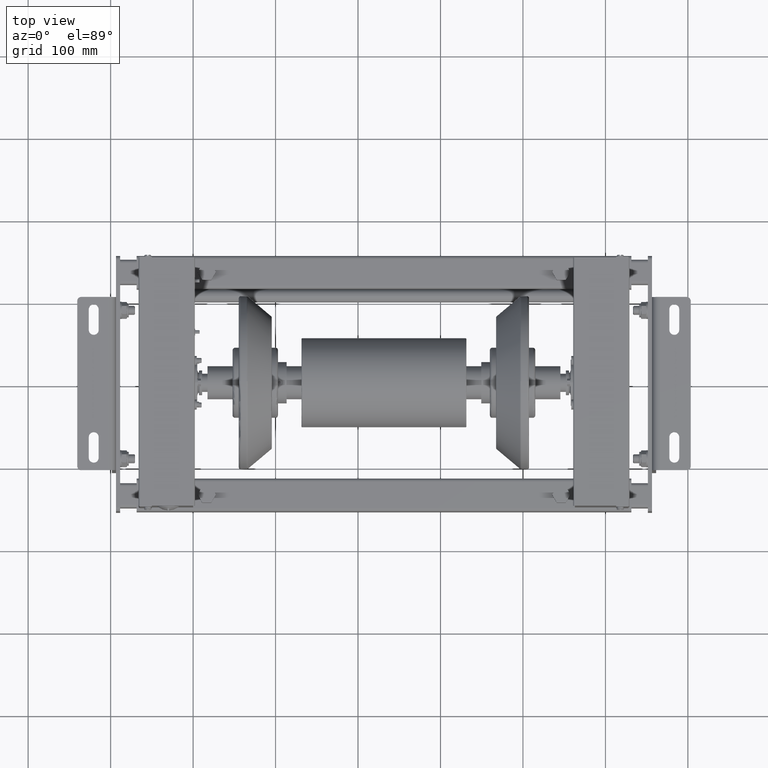
[diagram: clean part render]
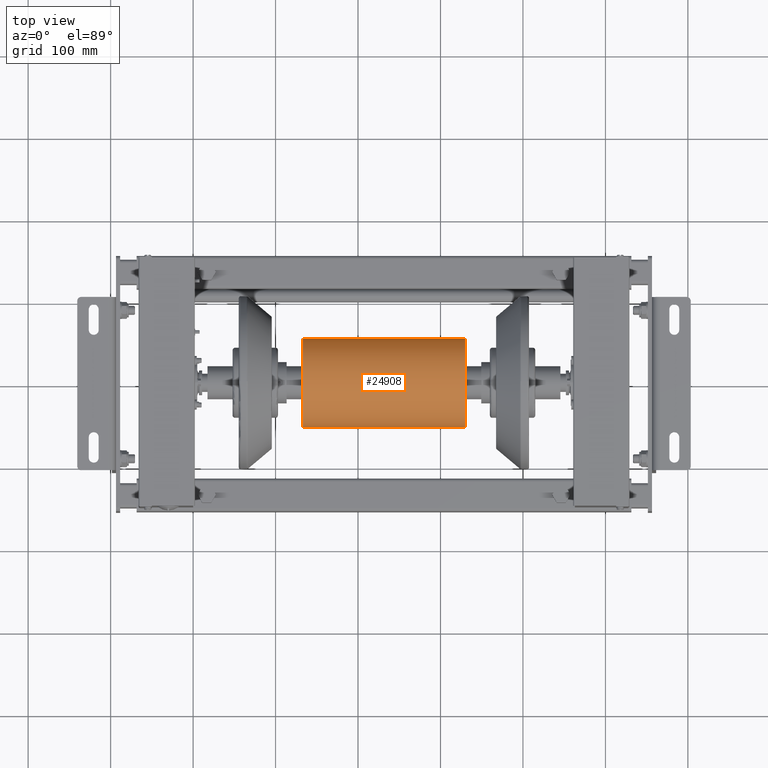
[diagram: same view with one face highlighted and labeled with its STEP entity id]
A machine part, top view. The second image highlights one B-rep face of the part: STEP entity #24908.
In plain terms, the highlighted cylindrical surface (partial cylindrical patch) has radius 54 mm, axis along (1, 0, 0).
Its self-contained STEP definition (entity closure, byte-faithful):
#24734=CARTESIAN_POINT('',(-33.500000000000000,-6.613093E-015,54.000000000000028));
#24735=VERTEX_POINT('',#24734);
#24743=CARTESIAN_POINT('',(-33.500000000000000,-53.999999999999972,-6.613093E-015));
#24744=VERTEX_POINT('',#24743);
#24745=CARTESIAN_POINT('',(-33.500000000000000,0.0,0.0));
#24746=DIRECTION('',(1.0,0.0,0.0));
#24747=DIRECTION('',(0.0,1.0,0.0));
#24748=AXIS2_PLACEMENT_3D('',#24745,#24746,#24747);
#24749=CIRCLE('',#24748,54.000000000000028);
#24750=EDGE_CURVE('',#24735,#24744,#24749,.T.);
#24767=CARTESIAN_POINT('',(-33.500000000000000,54.000000000000028,0.0));
#24768=VERTEX_POINT('',#24767);
#24769=CARTESIAN_POINT('',(-231.499999999999970,53.999999999999915,0.0));
#24770=VERTEX_POINT('',#24769);
#24771=CARTESIAN_POINT('',(-33.500000000000000,54.000000000000028,0.0));
#24772=DIRECTION('',(-1.0,0.0,0.0));
#24773=VECTOR('',#24772,197.999999999999970);
#24774=LINE('',#24771,#24773);
#24775=EDGE_CURVE('',#24768,#24770,#24774,.T.);
#24785=CARTESIAN_POINT('',(-231.499999999999970,-53.999999999999972,-6.613093E-015));
#24786=VERTEX_POINT('',#24785);
#24787=CARTESIAN_POINT('',(-33.500000000000000,-53.999999999999972,-6.613093E-015));
#24788=DIRECTION('',(-1.0,0.0,0.0));
#24789=VECTOR('',#24788,197.999999999999970);
#24790=LINE('',#24787,#24789);
#24791=EDGE_CURVE('',#24744,#24786,#24790,.T.);
#24827=CARTESIAN_POINT('',(-231.499999999999970,-6.613093E-015,53.999999999999915));
#24828=VERTEX_POINT('',#24827);
#24829=CARTESIAN_POINT('',(-231.499999999999970,0.0,0.0));
#24830=DIRECTION('',(1.0,0.0,0.0));
#24831=DIRECTION('',(0.0,1.0,0.0));
#24832=AXIS2_PLACEMENT_3D('',#24829,#24830,#24831);
#24833=CIRCLE('',#24832,53.999999999999915);
#24834=EDGE_CURVE('',#24828,#24786,#24833,.T.);
#24878=CARTESIAN_POINT('',(-231.499999999999970,0.0,0.0));
#24879=DIRECTION('',(1.0,0.0,0.0));
#24880=DIRECTION('',(0.0,1.0,0.0));
#24881=AXIS2_PLACEMENT_3D('',#24878,#24879,#24880);
#24882=CIRCLE('',#24881,53.999999999999915);
#24883=EDGE_CURVE('',#24770,#24828,#24882,.T.);
#24889=CARTESIAN_POINT('',(-132.500000000000000,0.0,0.0));
#24890=DIRECTION('',(1.0,0.0,0.0));
#24891=DIRECTION('',(0.0,1.0,0.0));
#24892=AXIS2_PLACEMENT_3D('',#24889,#24890,#24891);
#24893=CYLINDRICAL_SURFACE('',#24892,53.999999999999972);
#24894=ORIENTED_EDGE('',*,*,#24775,.T.);
#24895=ORIENTED_EDGE('',*,*,#24883,.T.);
#24896=ORIENTED_EDGE('',*,*,#24834,.T.);
#24897=ORIENTED_EDGE('',*,*,#24791,.F.);
#24898=ORIENTED_EDGE('',*,*,#24750,.F.);
#24899=CARTESIAN_POINT('',(-33.500000000000000,0.0,0.0));
#24900=DIRECTION('',(1.0,0.0,0.0));
#24901=DIRECTION('',(0.0,1.0,0.0));
#24902=AXIS2_PLACEMENT_3D('',#24899,#24900,#24901);
#24903=CIRCLE('',#24902,54.000000000000028);
#24904=EDGE_CURVE('',#24768,#24735,#24903,.T.);
#24905=ORIENTED_EDGE('',*,*,#24904,.F.);
#24906=EDGE_LOOP('',(#24894,#24895,#24896,#24897,#24898,#24905));
#24907=FACE_OUTER_BOUND('',#24906,.T.);
#24908=ADVANCED_FACE('',(#24907),#24893,.T.);